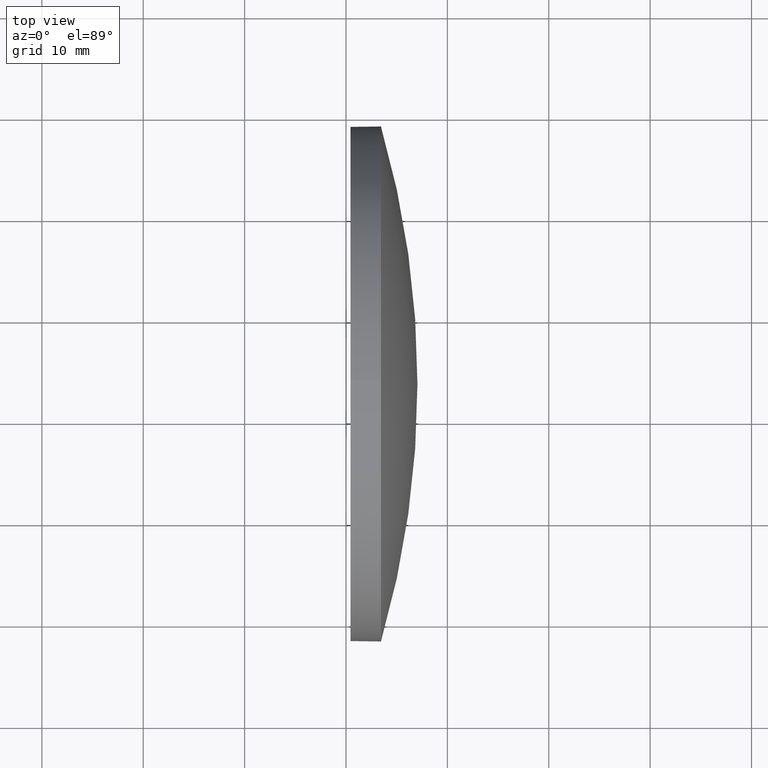
[diagram: clean part render]
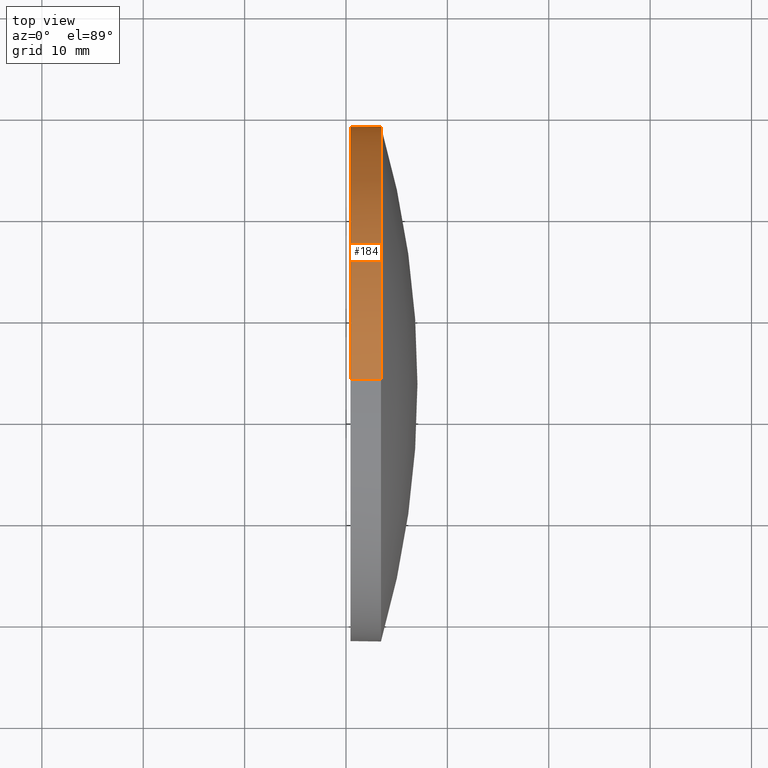
[diagram: same view with one face highlighted and labeled with its STEP entity id]
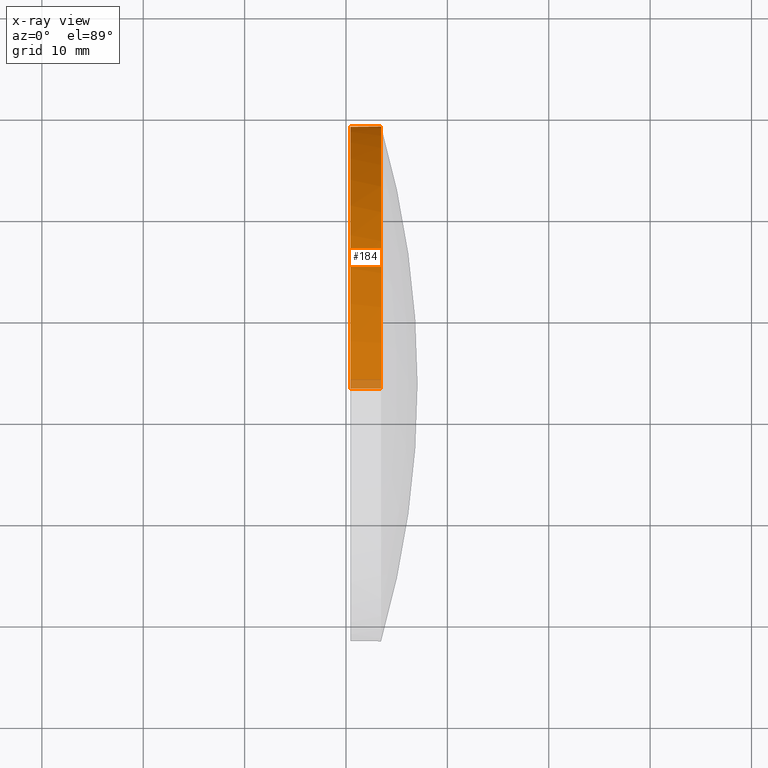
[diagram: x-ray of the same camera — body ghosted, the highlighted face saturated]
A machine part, top view. The second image highlights one B-rep face of the part: STEP entity #184.
The next image is the same camera in x-ray: the body ghosted, the highlighted face saturated — about 3% of this face is hidden behind the body in this view.
In plain terms, the highlighted cylindrical surface (partial cylindrical patch) has radius 25.4 mm, axis along (-1, -0, -0).
Its self-contained STEP definition (entity closure, byte-faithful):
#3 = CARTESIAN_POINT ( 'NONE',  ( 528.7585254841761800, 103.5177711168334200, -25.40000000000000600 ) ) ;
#4 = CARTESIAN_POINT ( 'NONE',  ( 540.4485991064416300, 103.5177711168334200, 25.40000000000000600 ) ) ;
#16 = CARTESIAN_POINT ( 'NONE',  ( 543.4485991064416300, 128.9177711168333400, 0.0000000000000000000 ) ) ;
#22 = CIRCLE ( 'NONE', #84, 25.40000000000000600 ) ;
#23 = VERTEX_POINT ( 'NONE', #76 ) ;
#24 = EDGE_CURVE ( 'NONE', #27, #167, #176, .T. ) ;
#25 = CARTESIAN_POINT ( 'NONE',  ( 543.4485991064416300, 103.5177711168334200, 0.0000000000000000000 ) ) ;
#27 = VERTEX_POINT ( 'NONE', #30 ) ;
#29 = CIRCLE ( 'NONE', #165, 25.40000000000000600 ) ;
#30 = CARTESIAN_POINT ( 'NONE',  ( 543.4485991064416300, 103.5177711168334200, -25.40000000000000600 ) ) ;
#32 = EDGE_CURVE ( 'NONE', #23, #60, #95, .T. ) ;
#34 = DIRECTION ( 'NONE',  ( 0.0000000000000000000, 0.0000000000000000000, 1.000000000000000000 ) ) ;
#43 = EDGE_CURVE ( 'NONE', #23, #106, #29, .T. ) ;
#44 = DIRECTION ( 'NONE',  ( -1.000000000000000000, -0.0000000000000000000, -0.0000000000000000000 ) ) ;
#46 = CARTESIAN_POINT ( 'NONE',  ( 540.4485991064416300, 103.5177711168334200, -25.40000000000000600 ) ) ;
#57 = DIRECTION ( 'NONE',  ( 0.0000000000000000000, 0.0000000000000000000, 1.000000000000000000 ) ) ;
#60 = VERTEX_POINT ( 'NONE', #4 ) ;
#61 = CARTESIAN_POINT ( 'NONE',  ( 543.4485991064416300, 103.5177711168334200, 0.0000000000000000000 ) ) ;
#63 = EDGE_CURVE ( 'NONE', #60, #167, #186, .T. ) ;
#64 = ORIENTED_EDGE ( 'NONE', *, *, #63, .F. ) ;
#70 = DIRECTION ( 'NONE',  ( 0.0000000000000000000, 0.0000000000000000000, 1.000000000000000000 ) ) ;
#75 = DIRECTION ( 'NONE',  ( -1.000000000000000000, -0.0000000000000000000, -0.0000000000000000000 ) ) ;
#76 = CARTESIAN_POINT ( 'NONE',  ( 543.4485991064416300, 103.5177711168334200, 25.40000000000000600 ) ) ;
#84 = AXIS2_PLACEMENT_3D ( 'NONE', #25, #129, #70 ) ;
#88 = ORIENTED_EDGE ( 'NONE', *, *, #183, .T. ) ;
#95 = LINE ( 'NONE', #158, #133 ) ;
#102 = EDGE_LOOP ( 'NONE', ( #88, #114, #64, #160, #163 ) ) ;
#105 = DIRECTION ( 'NONE',  ( -1.000000000000000000, -0.0000000000000000000, -0.0000000000000000000 ) ) ;
#106 = VERTEX_POINT ( 'NONE', #16 ) ;
#113 = AXIS2_PLACEMENT_3D ( 'NONE', #161, #105, #34 ) ;
#114 = ORIENTED_EDGE ( 'NONE', *, *, #24, .T. ) ;
#129 = DIRECTION ( 'NONE',  ( -1.000000000000000000, -0.0000000000000000000, -0.0000000000000000000 ) ) ;
#131 = AXIS2_PLACEMENT_3D ( 'NONE', #141, #44, #57 ) ;
#133 = VECTOR ( 'NONE', #75, 1000.000000000000000 ) ;
#134 = DIRECTION ( 'NONE',  ( 0.0000000000000000000, 0.0000000000000000000, 1.000000000000000000 ) ) ;
#138 = VECTOR ( 'NONE', #143, 1000.000000000000000 ) ;
#141 = CARTESIAN_POINT ( 'NONE',  ( 528.7585254841761800, 103.5177711168334200, 0.0000000000000000000 ) ) ;
#143 = DIRECTION ( 'NONE',  ( -1.000000000000000000, -0.0000000000000000000, -0.0000000000000000000 ) ) ;
#146 = DIRECTION ( 'NONE',  ( -1.000000000000000000, -0.0000000000000000000, -0.0000000000000000000 ) ) ;
#158 = CARTESIAN_POINT ( 'NONE',  ( 528.7585254841761800, 103.5177711168334200, 25.40000000000000600 ) ) ;
#160 = ORIENTED_EDGE ( 'NONE', *, *, #32, .F. ) ;
#161 = CARTESIAN_POINT ( 'NONE',  ( 540.4485991064416300, 103.5177711168334200, 0.0000000000000000000 ) ) ;
#163 = ORIENTED_EDGE ( 'NONE', *, *, #43, .T. ) ;
#165 = AXIS2_PLACEMENT_3D ( 'NONE', #61, #146, #134 ) ;
#167 = VERTEX_POINT ( 'NONE', #46 ) ;
#174 = CYLINDRICAL_SURFACE ( 'NONE', #131, 25.40000000000000600 ) ;
#176 = LINE ( 'NONE', #3, #138 ) ;
#181 = FACE_OUTER_BOUND ( 'NONE', #102, .T. ) ;
#183 = EDGE_CURVE ( 'NONE', #106, #27, #22, .T. ) ;
#184 = ADVANCED_FACE ( 'NONE', ( #181 ), #174, .T. ) ;
#186 = CIRCLE ( 'NONE', #113, 25.40000000000000600 ) ;